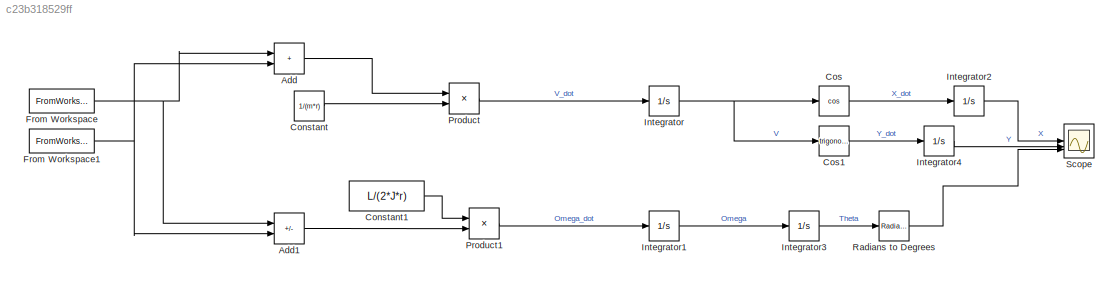
MODEL slx_c23b318529ff
KIND model
CONFIG AbsTol = auto
CONFIG EnableMultiTasking = off
CONFIG FixedStep = auto
CONFIG MaxStep = auto
CONFIG MinStep = auto
CONFIG RelTol = 1e-3
CONFIG SampleTimeConstraint = Unconstrained
CONFIG SolverName = VariableStepAuto
CONFIG StartTime = 0.0
CONFIG StopTime = 10.0
BLOCK [Sum] Add
  IconShape = rectangular
BLOCK [Sum] Add1
  IconShape = rectangular
  Inputs = +-
BLOCK [Constant] Constant
  Value = 1/(m*r)
BLOCK [Constant] Constant1
  Value = L/(2*J*r)
BLOCK [Trigonometry] Cos
  Operator = cos
BLOCK [Trigonometry] Cos1
BLOCK [FromWorkspace] From Workspace
  VariableName = T_R
BLOCK [FromWorkspace] From Workspace1
  VariableName = T_L
BLOCK [Integrator] Integrator
  InitialCondition = v
BLOCK [Integrator] Integrator1
  InitialCondition = omega
BLOCK [Integrator] Integrator2
  InitialCondition = x
BLOCK [Integrator] Integrator3
  InitialCondition = theta
BLOCK [Integrator] Integrator4
  InitialCondition = y
BLOCK [Product] Product
BLOCK [Product] Product1
BLOCK [Reference] Radians to Degrees  REF=simulink_extras/Transformations/Radians
to Degrees
  SourceBlock = simulink_extras/Transformations/Radians\nto Degrees
  SourceType = RadiansToDegrees
BLOCK [Scope] Scope
  Floating = off
  NumInputPorts = 3
  ScopeSpecificationString = Simulink.scopes.TimeScopeBlockCfg('CurrentConfiguration', extmgr.ConfigurationSet(extmgr.Configuration('Core','General UI',true),extmgr.Configuration('Core','Source UI',true),extmgr.Configuration('Sources','WiredSimulink',true),extmgr.Configuration('Visuals','Time Domain',true,'SerializedDisplays',{struct('MinYLimReal','-1.21561','MaxYLimReal','10.94047','YLabelReal','','MinYLimMag','0.00000','Max...<+3000ch>
LINE Add1:1 -> Product1:2
LINE Add:1 -> Product:1
LINE Constant1:1 -> Product1:1
LINE Constant:1 -> Product:2
LINE Cos1:1 -> Integrator4:1
LINE Cos:1 -> Integrator2:1
NET From Workspace1:1 -> Add1:2, Add:2
NET From Workspace:1 -> Add1:1, Add:1
LINE Integrator1:1 -> Integrator3:1
LINE Integrator2:1 -> Scope:1
LINE Integrator3:1 -> Radians to Degrees:1
LINE Integrator4:1 -> Scope:2
NET Integrator:1 -> Cos1:1, Cos:1
LINE Product1:1 -> Integrator1:1
LINE Product:1 -> Integrator:1
LINE Radians to Degrees:1 -> Scope:3
note: NET lines group one-source signal fan-out (src -> all destinations, sorted); 1:1 wires keep LINE
